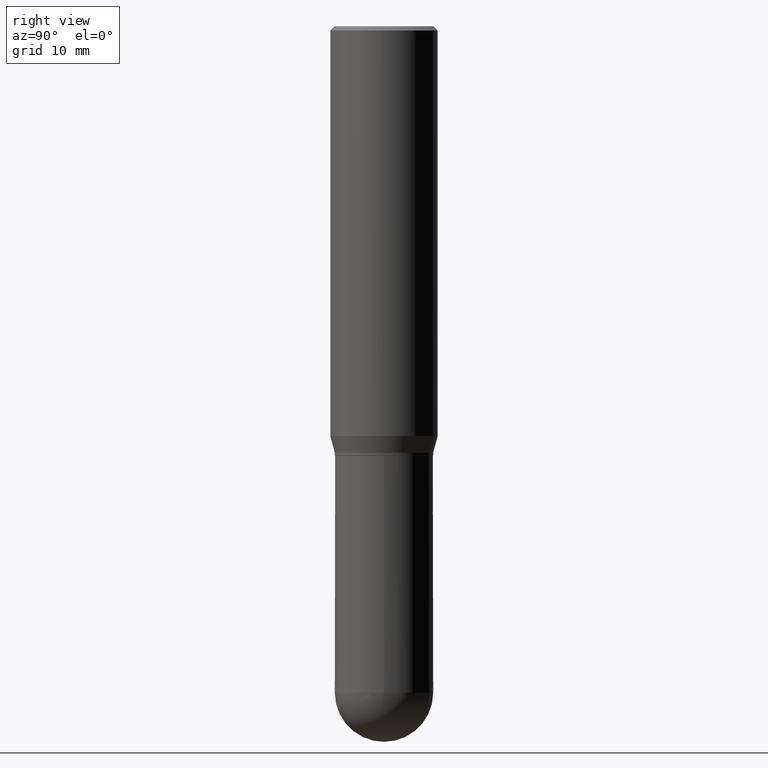
[diagram: clean part render]
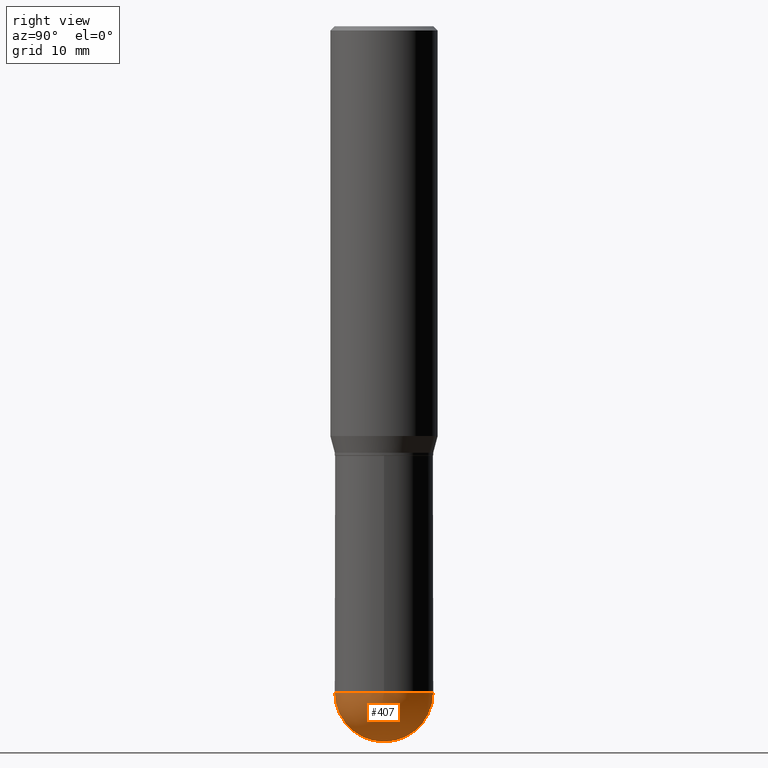
[diagram: same view with one face highlighted and labeled with its STEP entity id]
A machine part, right view. The second image highlights one B-rep face of the part: STEP entity #407.
In plain terms, the highlighted spherical surface has radius 4.3663 mm.
Its self-contained STEP definition (entity closure, byte-faithful):
#2 = DIRECTION ( 'NONE',  ( -7.105427357601001070E-15, -1.000000000000000000, 0.000000000000000000 ) ) ;
#11 = VERTEX_POINT ( 'NONE', #105 ) ;
#13 = VERTEX_POINT ( 'NONE', #62 ) ;
#16 = CARTESIAN_POINT ( 'NONE',  ( 5.693295927679617284E-29, -8.128517704960729139E-15, -2.328100000000000058 ) ) ;
#29 = FACE_OUTER_BOUND ( 'NONE', #358, .T. ) ;
#47 = CARTESIAN_POINT ( 'NONE',  ( 5.678595619168622984E-29, -8.149569383438070914E-15, -2.328100000000000058 ) ) ;
#62 = CARTESIAN_POINT ( 'NONE',  ( 1.200371284294326039E-15, 0.1718999999999918094, -2.328100000000000946 ) ) ;
#78 = CARTESIAN_POINT ( 'NONE',  ( 5.678595619168622984E-29, -8.149569383438070914E-15, -2.328100000000000058 ) ) ;
#92 = DIRECTION ( 'NONE',  ( 1.000000000000000000, -6.982962677686271444E-15, 0.000000000000000000 ) ) ;
#99 = AXIS2_PLACEMENT_3D ( 'NONE', #140, #230, #462 ) ;
#105 = CARTESIAN_POINT ( 'NONE',  ( 0.1719000000000000250, -7.883241140906993293E-15, -2.328100000000000058 ) ) ;
#133 = AXIS2_PLACEMENT_3D ( 'NONE', #47, #201, #389 ) ;
#140 = CARTESIAN_POINT ( 'NONE',  ( 5.678595619168622984E-29, -8.149569383438070914E-15, -2.328100000000000058 ) ) ;
#146 = SPHERICAL_SURFACE ( 'NONE', #99, 0.1718999999999999417 ) ;
#166 = EDGE_CURVE ( 'NONE', #336, #11, #234, .T. ) ;
#168 = CIRCLE ( 'NONE', #133, 0.1718999999999999417 ) ;
#177 = EDGE_CURVE ( 'NONE', #11, #13, #430, .T. ) ;
#185 = CARTESIAN_POINT ( 'NONE',  ( 5.693295927679617284E-29, -8.128517704960729139E-15, -2.328100000000000058 ) ) ;
#201 = DIRECTION ( 'NONE',  ( 1.000000000000000000, -6.982962677686265922E-15, 4.883557194083112340E-29 ) ) ;
#230 = DIRECTION ( 'NONE',  ( -1.000000000000000000, 6.982962677686265922E-15, -4.883557194083112340E-29 ) ) ;
#234 = CIRCLE ( 'NONE', #299, 0.1719000000000000250 ) ;
#243 = CIRCLE ( 'NONE', #381, 0.1718999999999999417 ) ;
#245 = ORIENTED_EDGE ( 'NONE', *, *, #326, .T. ) ;
#259 = DIRECTION ( 'NONE',  ( -2.445468806185136597E-29, 3.491481338843145583E-15, 1.000000000000000000 ) ) ;
#275 = CARTESIAN_POINT ( 'NONE',  ( -1.221422962771555008E-15, -0.1719000000000081296, -2.328099999999999614 ) ) ;
#278 = DIRECTION ( 'NONE',  ( -1.000000000000000000, 7.105427357601001070E-15, -4.926315508542082329E-29 ) ) ;
#297 = CARTESIAN_POINT ( 'NONE',  ( 6.106321861207344902E-29, -8.739229186346536619E-15, -2.500000000000000000 ) ) ;
#299 = AXIS2_PLACEMENT_3D ( 'NONE', #185, #449, #482 ) ;
#301 = ORIENTED_EDGE ( 'NONE', *, *, #177, .F. ) ;
#315 = EDGE_CURVE ( 'NONE', #395, #336, #243, .T. ) ;
#325 = ORIENTED_EDGE ( 'NONE', *, *, #166, .F. ) ;
#326 = EDGE_CURVE ( 'NONE', #395, #13, #168, .T. ) ;
#336 = VERTEX_POINT ( 'NONE', #275 ) ;
#358 = EDGE_LOOP ( 'NONE', ( #394, #245, #301, #325 ) ) ;
#381 = AXIS2_PLACEMENT_3D ( 'NONE', #78, #278, #2 ) ;
#389 = DIRECTION ( 'NONE',  ( 6.982962677686266711E-15, 1.000000000000000000, 0.000000000000000000 ) ) ;
#394 = ORIENTED_EDGE ( 'NONE', *, *, #315, .F. ) ;
#395 = VERTEX_POINT ( 'NONE', #297 ) ;
#407 = ADVANCED_FACE ( 'NONE', ( #29 ), #146, .T. ) ;
#430 = CIRCLE ( 'NONE', #484, 0.1719000000000000250 ) ;
#449 = DIRECTION ( 'NONE',  ( -2.445468806185136597E-29, 3.491481338843145583E-15, 1.000000000000000000 ) ) ;
#462 = DIRECTION ( 'NONE',  ( 6.982962677686265922E-15, 1.000000000000000000, -3.178415350394722463E-15 ) ) ;
#482 = DIRECTION ( 'NONE',  ( 1.000000000000000000, -6.982962677686271444E-15, 0.000000000000000000 ) ) ;
#484 = AXIS2_PLACEMENT_3D ( 'NONE', #16, #259, #92 ) ;